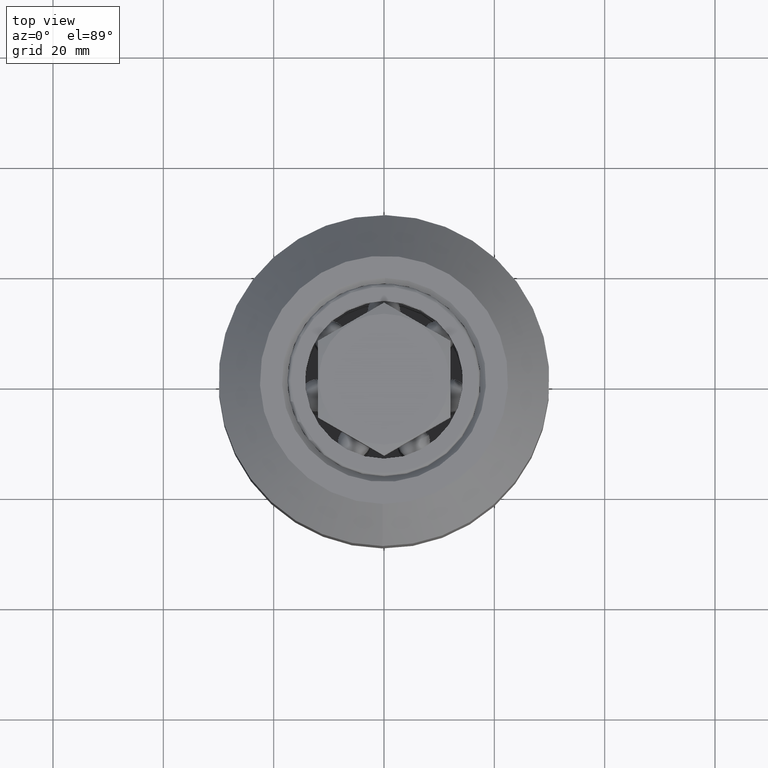
[diagram: clean part render]
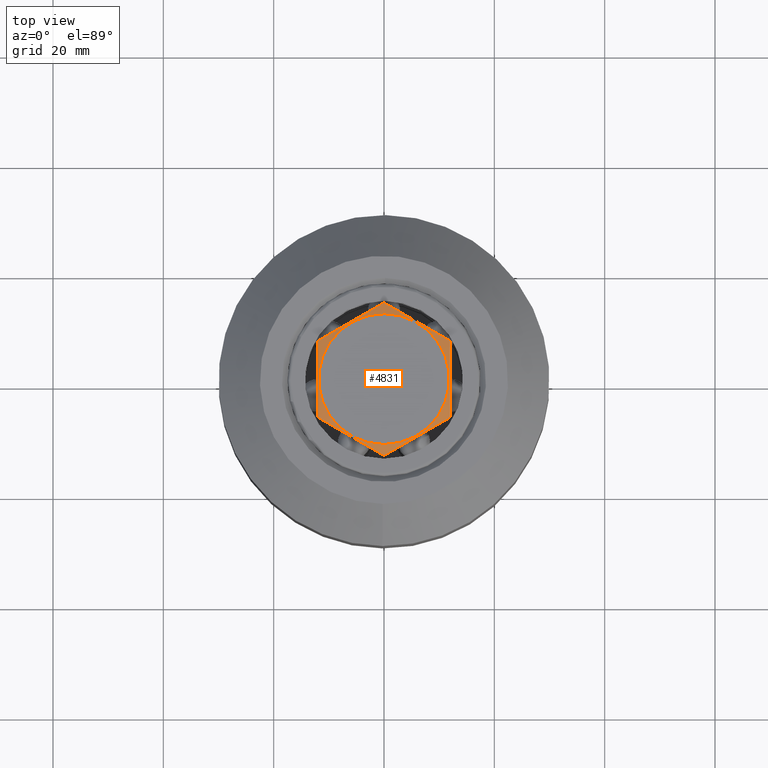
[diagram: same view with one face highlighted and labeled with its STEP entity id]
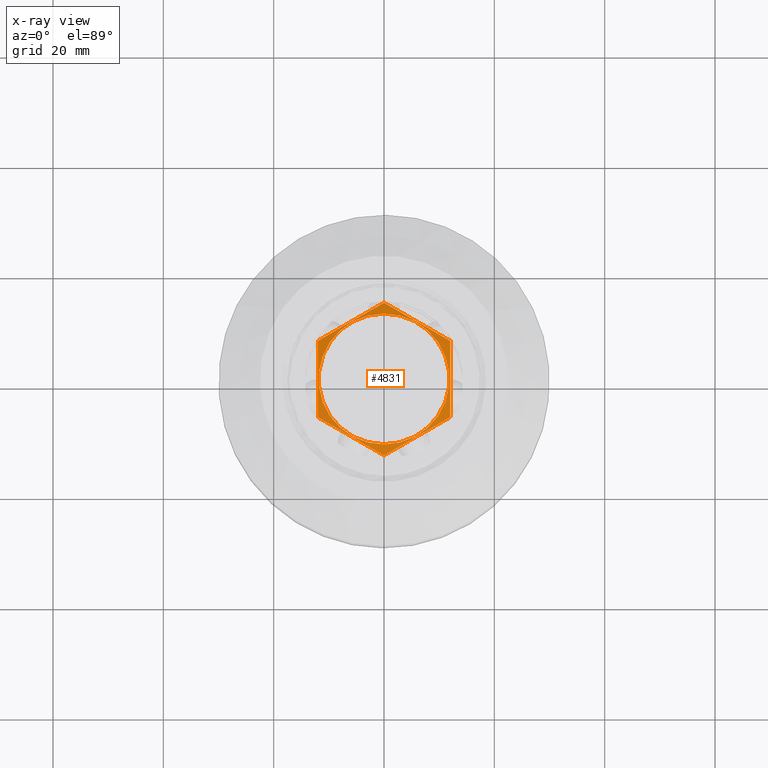
[diagram: x-ray of the same camera — body ghosted, the highlighted face saturated]
A machine part, top view. The second image highlights one B-rep face of the part: STEP entity #4831.
The next image is the same camera in x-ray: the body ghosted, the highlighted face saturated — about 0% of this face is hidden behind the body in this view.
In plain terms, the highlighted conical surface has half-angle 75 deg.
Its self-contained STEP definition (entity closure, byte-faithful):
#443=FACE_OUTER_BOUND('',#714,.T.);
#714=EDGE_LOOP('',(#3281,#3282,#3283,#3284,#3285,#3286,#3287,#3288,#3289));
#1019=CIRCLE('',#5322,11.856406460551);
#1286=LINE('',#7326,#1576);
#1576=VECTOR('',#5888,12.856406460551);
#1866=(
BOUNDED_CURVE()
B_SPLINE_CURVE(2,(#7303,#7304,#7305),.UNSPECIFIED.,.F.,.F.)
B_SPLINE_CURVE_WITH_KNOTS((3,3),(0.,1.38920738919512),.UNSPECIFIED.)
CURVE()
GEOMETRIC_REPRESENTATION_ITEM()
RATIONAL_B_SPLINE_CURVE((1.,1.15470053837925,1.))
REPRESENTATION_ITEM('')
);
#1867=(
BOUNDED_CURVE()
B_SPLINE_CURVE(2,(#7307,#7308,#7309),.UNSPECIFIED.,.F.,.F.)
B_SPLINE_CURVE_WITH_KNOTS((3,3),(0.,1.38920738919512),.UNSPECIFIED.)
CURVE()
GEOMETRIC_REPRESENTATION_ITEM()
RATIONAL_B_SPLINE_CURVE((1.,1.15470053837926,1.))
REPRESENTATION_ITEM('')
);
#1868=(
BOUNDED_CURVE()
B_SPLINE_CURVE(2,(#7311,#7312,#7313),.UNSPECIFIED.,.F.,.F.)
B_SPLINE_CURVE_WITH_KNOTS((3,3),(0.,1.38920738919512),.UNSPECIFIED.)
CURVE()
GEOMETRIC_REPRESENTATION_ITEM()
RATIONAL_B_SPLINE_CURVE((1.,1.15470053837926,1.))
REPRESENTATION_ITEM('')
);
#1869=(
BOUNDED_CURVE()
B_SPLINE_CURVE(2,(#7315,#7316,#7317),.UNSPECIFIED.,.F.,.F.)
B_SPLINE_CURVE_WITH_KNOTS((3,3),(0.,1.38920738919511),.UNSPECIFIED.)
CURVE()
GEOMETRIC_REPRESENTATION_ITEM()
RATIONAL_B_SPLINE_CURVE((1.,1.15470053837925,1.))
REPRESENTATION_ITEM('')
);
#1870=(
BOUNDED_CURVE()
B_SPLINE_CURVE(2,(#7319,#7320,#7321),.UNSPECIFIED.,.F.,.F.)
B_SPLINE_CURVE_WITH_KNOTS((3,3),(0.,1.38920738919512),.UNSPECIFIED.)
CURVE()
GEOMETRIC_REPRESENTATION_ITEM()
RATIONAL_B_SPLINE_CURVE((1.,1.15470053837925,1.))
REPRESENTATION_ITEM('')
);
#1871=(
BOUNDED_CURVE()
B_SPLINE_CURVE(2,(#7322,#7323,#7324),.UNSPECIFIED.,.F.,.F.)
B_SPLINE_CURVE_WITH_KNOTS((3,3),(0.,1.38920738919511),.UNSPECIFIED.)
CURVE()
GEOMETRIC_REPRESENTATION_ITEM()
RATIONAL_B_SPLINE_CURVE((1.,1.15470053837925,1.))
REPRESENTATION_ITEM('')
);
#1998=VERTEX_POINT('',#7301);
#1999=VERTEX_POINT('',#7302);
#2000=VERTEX_POINT('',#7306);
#2001=VERTEX_POINT('',#7310);
#2002=VERTEX_POINT('',#7314);
#2003=VERTEX_POINT('',#7318);
#2004=VERTEX_POINT('',#7325);
#2515=EDGE_CURVE('',#1998,#1999,#1866,.T.);
#2516=EDGE_CURVE('',#2000,#1998,#1867,.T.);
#2517=EDGE_CURVE('',#2001,#2000,#1868,.T.);
#2518=EDGE_CURVE('',#2002,#2001,#1869,.T.);
#2519=EDGE_CURVE('',#2003,#2002,#1870,.T.);
#2520=EDGE_CURVE('',#1999,#2003,#1871,.T.);
#2521=EDGE_CURVE('',#1999,#2004,#1286,.T.);
#2522=EDGE_CURVE('',#2004,#2004,#1019,.T.);
#3281=ORIENTED_EDGE('',*,*,#2515,.F.);
#3282=ORIENTED_EDGE('',*,*,#2516,.F.);
#3283=ORIENTED_EDGE('',*,*,#2517,.F.);
#3284=ORIENTED_EDGE('',*,*,#2518,.F.);
#3285=ORIENTED_EDGE('',*,*,#2519,.F.);
#3286=ORIENTED_EDGE('',*,*,#2520,.F.);
#3287=ORIENTED_EDGE('',*,*,#2521,.T.);
#3288=ORIENTED_EDGE('',*,*,#2522,.F.);
#3289=ORIENTED_EDGE('',*,*,#2521,.F.);
#4813=CONICAL_SURFACE('',#5321,12.856406460551,1.30899693899575);
#4831=ADVANCED_FACE('',(#443),#4813,.T.);
#5321=AXIS2_PLACEMENT_3D('',#7300,#5886,#5887);
#5322=AXIS2_PLACEMENT_3D('',#7327,#5889,#5890);
#5886=DIRECTION('center_axis',(0.,0.,-1.));
#5887=DIRECTION('ref_axis',(0.,1.,0.));
#5888=DIRECTION('',(-1.18291797137867E-16,0.965925826289068,0.258819045102521));
#5889=DIRECTION('center_axis',(0.,0.,1.));
#5890=DIRECTION('ref_axis',(0.,1.,0.));
#7300=CARTESIAN_POINT('Origin',(0.,0.,7.73205080756888));
#7301=CARTESIAN_POINT('',(12.,-6.92820323027551,7.46410161513776));
#7302=CARTESIAN_POINT('',(-4.44089209850063E-15,-13.856406460551,7.46410161513776));
#7303=CARTESIAN_POINT('Ctrl Pts',(12.,-6.92820323027551,7.46410161513776));
#7304=CARTESIAN_POINT('Ctrl Pts',(6.,-10.3923048454133,8.39230484541327));
#7305=CARTESIAN_POINT('Ctrl Pts',(-7.17947190217064E-15,-13.856406460551,
7.46410161513776));
#7306=CARTESIAN_POINT('',(12.,6.9282032302755,7.46410161513776));
#7307=CARTESIAN_POINT('Ctrl Pts',(12.,6.9282032302755,7.46410161513776));
#7308=CARTESIAN_POINT('Ctrl Pts',(12.,1.66533453693773E-15,8.39230484541326));
#7309=CARTESIAN_POINT('Ctrl Pts',(12.,-6.9282032302755,7.46410161513776));
#7310=CARTESIAN_POINT('',(0.,13.856406460551,7.46410161513776));
#7311=CARTESIAN_POINT('Ctrl Pts',(3.58973595108532E-15,13.856406460551,
7.46410161513776));
#7312=CARTESIAN_POINT('Ctrl Pts',(6.,10.3923048454133,8.39230484541326));
#7313=CARTESIAN_POINT('Ctrl Pts',(12.,6.92820323027551,7.46410161513776));
#7314=CARTESIAN_POINT('',(-12.,6.92820323027552,7.46410161513776));
#7315=CARTESIAN_POINT('Ctrl Pts',(-12.,6.92820323027552,7.46410161513776));
#7316=CARTESIAN_POINT('Ctrl Pts',(-6.,10.3923048454133,8.39230484541326));
#7317=CARTESIAN_POINT('Ctrl Pts',(-1.0769207853256E-14,13.856406460551,
7.46410161513776));
#7318=CARTESIAN_POINT('',(-12.,-6.92820323027551,7.46410161513776));
#7319=CARTESIAN_POINT('Ctrl Pts',(-12.,-6.92820323027551,7.46410161513776));
#7320=CARTESIAN_POINT('Ctrl Pts',(-12.,3.33066907387547E-15,8.39230484541327));
#7321=CARTESIAN_POINT('Ctrl Pts',(-12.,6.92820323027551,7.46410161513776));
#7322=CARTESIAN_POINT('Ctrl Pts',(-1.91452584057884E-14,-13.856406460551,
7.46410161513776));
#7323=CARTESIAN_POINT('Ctrl Pts',(-6.00000000000001,-10.3923048454133,8.39230484541326));
#7324=CARTESIAN_POINT('Ctrl Pts',(-12.,-6.92820323027551,7.46410161513776));
#7325=CARTESIAN_POINT('',(1.45199102213038E-15,-11.856406460551,8.));
#7326=CARTESIAN_POINT('',(1.57445570204512E-15,-12.856406460551,7.73205080756888));
#7327=CARTESIAN_POINT('Origin',(0.,0.,8.));